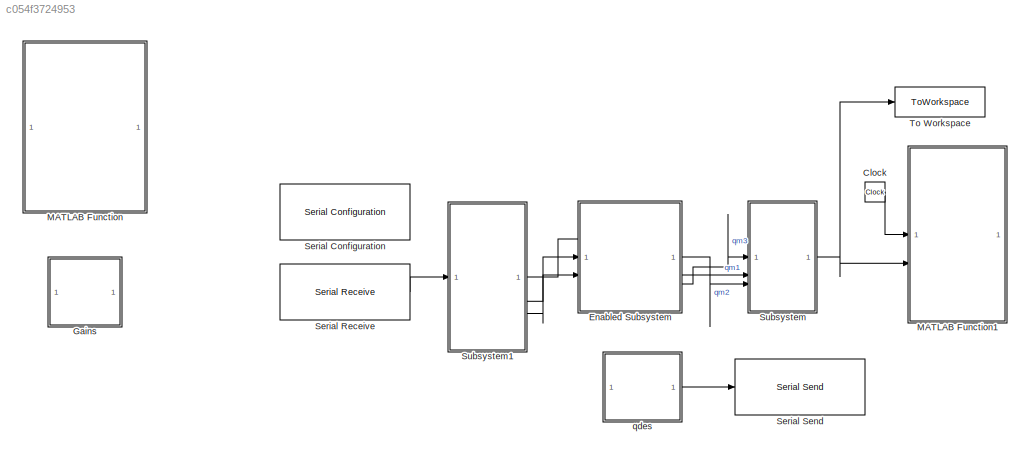
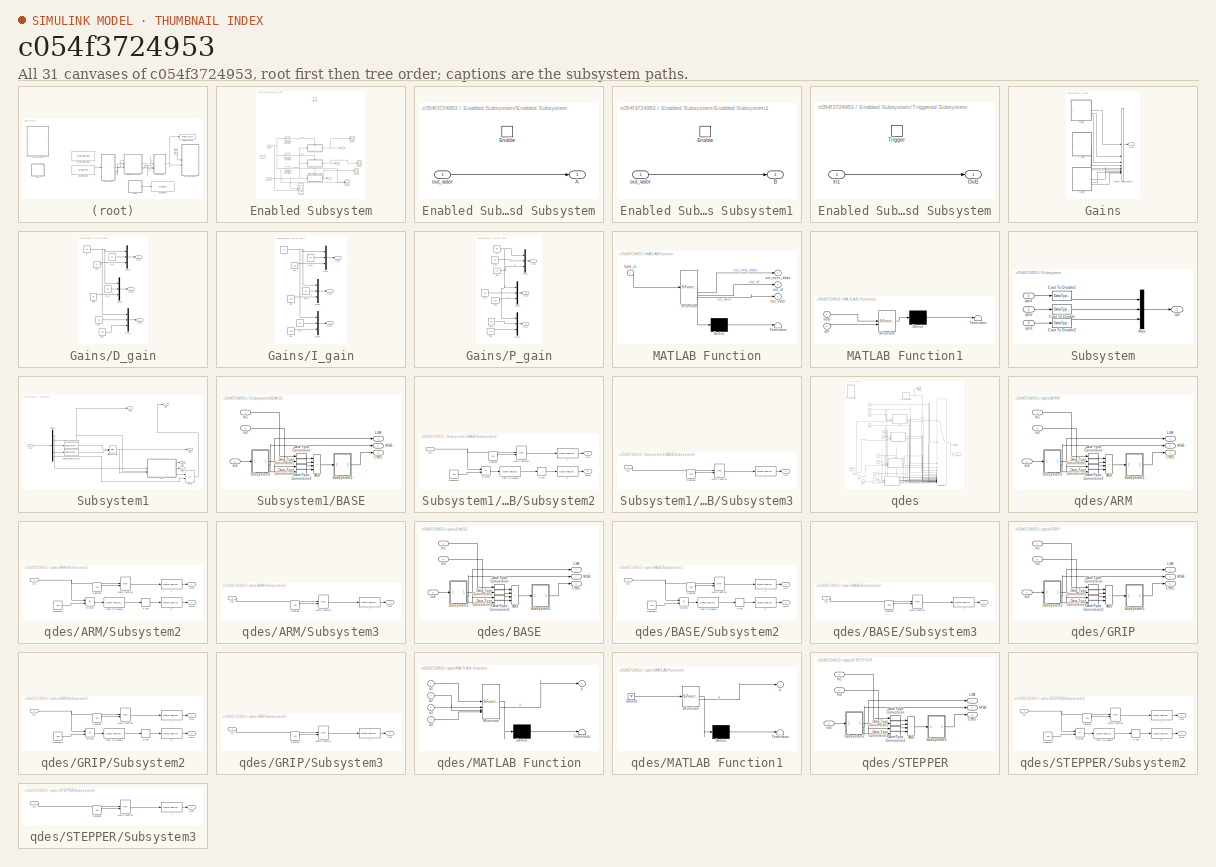
[diagram: thumbnail index - all 31 canvases of the model, root first then tree order]
MODEL slx_c054f3724953
KIND model
CONFIG AbsTol = auto
CONFIG EnableMultiTasking = off
CONFIG FixedStep = auto
CONFIG MaxStep = auto
CONFIG MinStep = auto
CONFIG RelTol = 1e-3
CONFIG SampleTimeConstraint = Unconstrained
CONFIG SolverName = VariableStepAuto
CONFIG StartTime = 0.0
CONFIG StopFcn = try\n    delete(instrfindall);\n    fclose(instrfindall);\ncatch\nend\n
CONFIG StopTime = inf
BLOCK [Clock] Clock
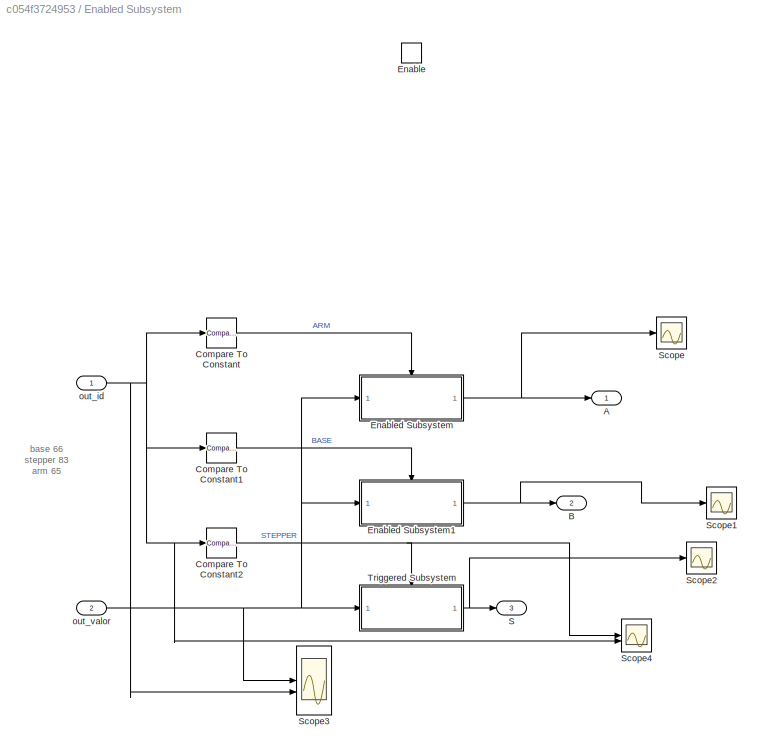
BLOCK [SubSystem] Enabled Subsystem
  TreatAsAtomicUnit = on
BLOCK [Outport] Enabled Subsystem/A
BLOCK [Outport] Enabled Subsystem/B
  Port = 2
BLOCK [Reference] Enabled Subsystem/Compare To Constant  REF=simulink/Logic and Bit
Operations/Compare
To Constant
  SourceBlock = simulink/Logic and Bit\nOperations/Compare\nTo Constant
  SourceType = Compare To Constant
BLOCK [Reference] Enabled Subsystem/Compare To Constant1  REF=simulink/Logic and Bit
Operations/Compare
To Constant
  SourceBlock = simulink/Logic and Bit\nOperations/Compare\nTo Constant
  SourceType = Compare To Constant
BLOCK [Reference] Enabled Subsystem/Compare To Constant2  REF=simulink/Logic and Bit
Operations/Compare
To Constant
  SourceBlock = simulink/Logic and Bit\nOperations/Compare\nTo Constant
  SourceType = Compare To Constant
BLOCK [EnablePort] Enabled Subsystem/Enable
BLOCK [SubSystem] Enabled Subsystem/Enabled Subsystem
  TreatAsAtomicUnit = on
BLOCK [Outport] Enabled Subsystem/Enabled Subsystem/A
BLOCK [EnablePort] Enabled Subsystem/Enabled Subsystem/Enable
BLOCK [Inport] Enabled Subsystem/Enabled Subsystem/out_valor
BLOCK [SubSystem] Enabled Subsystem/Enabled Subsystem1
  TreatAsAtomicUnit = on
BLOCK [Outport] Enabled Subsystem/Enabled Subsystem1/B
BLOCK [EnablePort] Enabled Subsystem/Enabled Subsystem1/Enable
BLOCK [Inport] Enabled Subsystem/Enabled Subsystem1/out_valor
BLOCK [Outport] Enabled Subsystem/S
  Port = 3
BLOCK [Scope] Enabled Subsystem/Scope
  Floating = off
  NumInputPorts = 1
  ScopeSpecificationString = Simulink.scopes.TimeScopeBlockCfg('CurrentConfiguration', extmgr.ConfigurationSet(extmgr.Configuration('Core','General UI',true),extmgr.Configuration('Core','Source UI',true),extmgr.Configuration('Sources','WiredSimulink',true,'DataLoggingVariableName','ScopeData3'),extmgr.Configuration('Visuals','Time Domain',true,'SerializedDisplays',{struct('MinYLimReal','-0.10349','MaxYLimReal','0.20922','YLab...<+1511ch>
BLOCK [Scope] Enabled Subsystem/Scope1
  Floating = off
  NumInputPorts = 1
  ScopeSpecificationString = Simulink.scopes.TimeScopeBlockCfg('CurrentConfiguration', extmgr.ConfigurationSet(extmgr.Configuration('Core','General UI',true),extmgr.Configuration('Core','Source UI',true),extmgr.Configuration('Sources','WiredSimulink',true,'DataLoggingVariableName','ScopeData4'),extmgr.Configuration('Visuals','Time Domain',true,'SerializedDisplays',{struct('MinYLimReal','-0.25','MaxYLimReal','2.25','YLabelReal...<+1519ch>
BLOCK [Scope] Enabled Subsystem/Scope2
  Floating = off
  NumInputPorts = 1
  ScopeSpecificationString = Simulink.scopes.TimeScopeBlockCfg('CurrentConfiguration', extmgr.ConfigurationSet(extmgr.Configuration('Core','General UI',true),extmgr.Configuration('Core','Source UI',true),extmgr.Configuration('Sources','WiredSimulink',true,'DataLoggingVariableName','ScopeData5'),extmgr.Configuration('Visuals','Time Domain',true,'SerializedDisplays',{struct('MinYLimReal','-14.375','MaxYLimReal','129.375','YLabe...<+1536ch>
BLOCK [Scope] Enabled Subsystem/Scope3
  Floating = off
  NumInputPorts = 2
  ScopeSpecificationString = Simulink.scopes.TimeScopeBlockCfg('CurrentConfiguration', extmgr.ConfigurationSet(extmgr.Configuration('Core','General UI',true),extmgr.Configuration('Core','Source UI',true),extmgr.Configuration('Sources','WiredSimulink',true,'DataLoggingVariableName','ScopeData6'),extmgr.Configuration('Visuals','Time Domain',true,'SerializedDisplays',{struct('MinYLimReal','-14.375','MaxYLimReal','129.375','YLabe...<+2259ch>
BLOCK [Scope] Enabled Subsystem/Scope4
  Floating = off
  NumInputPorts = 2
  ScopeSpecificationString = Simulink.scopes.TimeScopeBlockCfg('CurrentConfiguration', extmgr.ConfigurationSet(extmgr.Configuration('Core','General UI',true),extmgr.Configuration('Core','Source UI',true),extmgr.Configuration('Sources','WiredSimulink',true,'DataLoggingVariableName','ScopeData7'),extmgr.Configuration('Visuals','Time Domain',true,'SerializedDisplays',{struct('MinYLimReal','-0.125','MaxYLimReal','1.125','YLabelRe...<+2253ch>
BLOCK [SubSystem] Enabled Subsystem/Triggered Subsystem
  TreatAsAtomicUnit = on
BLOCK [Inport] Enabled Subsystem/Triggered Subsystem/In1
BLOCK [Outport] Enabled Subsystem/Triggered Subsystem/Out1
BLOCK [TriggerPort] Enabled Subsystem/Triggered Subsystem/Trigger
  StatesWhenEnabling = held
  VariantControl = (inherit)
BLOCK [Inport] Enabled Subsystem/out_id
BLOCK [Inport] Enabled Subsystem/out_valor
  Port = 2
BLOCK [SubSystem] Gains
  Commented = on
BLOCK [SubSystem] Gains/D_gain
BLOCK [Constant] Gains/D_gain/D
  OutDataTypeStr = uint8
  Value = 68
BLOCK [Constant] Gains/D_gain/J1_B
  OutDataTypeStr = uint8
  Value = 66
BLOCK [Constant] Gains/D_gain/J2_S
  OutDataTypeStr = uint8
  Value = 82
BLOCK [Constant] Gains/D_gain/J3_A
  OutDataTypeStr = uint8
  Value = 65
BLOCK [Constant] Gains/D_gain/Kd1
  OutDataTypeStr = uint8
  Value = 17
BLOCK [Constant] Gains/D_gain/Kd2
  OutDataTypeStr = uint8
  Value = 90
BLOCK [Constant] Gains/D_gain/Kd3
  OutDataTypeStr = uint8
  Value = 109
BLOCK [Mux] Gains/D_gain/Mux1
  DisplayOption = bar
  Inputs = 3
BLOCK [Mux] Gains/D_gain/Mux2
  DisplayOption = bar
  Inputs = 3
BLOCK [Mux] Gains/D_gain/Mux3
  DisplayOption = bar
  Inputs = 3
BLOCK [Outport] Gains/D_gain/Out1
BLOCK [Outport] Gains/D_gain/Out2
  Port = 2
BLOCK [Outport] Gains/D_gain/Out3
  Port = 3
BLOCK [SubSystem] Gains/I_gain
BLOCK [Constant] Gains/I_gain/I
  OutDataTypeStr = uint8
  Value = 73
BLOCK [Constant] Gains/I_gain/J1_B
  OutDataTypeStr = uint8
  Value = 66
BLOCK [Constant] Gains/I_gain/J2_S
  OutDataTypeStr = uint8
  Value = 82
BLOCK [Constant] Gains/I_gain/J3_A
  OutDataTypeStr = uint8
  Value = 65
BLOCK [Constant] Gains/I_gain/Ki1
  OutDataTypeStr = uint8
  Value = 230
BLOCK [Constant] Gains/I_gain/Ki2
  OutDataTypeStr = uint8
  Value = 200
BLOCK [Constant] Gains/I_gain/Ki3
  OutDataTypeStr = uint8
  Value = 220
BLOCK [Mux] Gains/I_gain/Mux1
  DisplayOption = bar
  Inputs = 3
BLOCK [Mux] Gains/I_gain/Mux2
  DisplayOption = bar
  Inputs = 3
BLOCK [Mux] Gains/I_gain/Mux3
  DisplayOption = bar
  Inputs = 3
BLOCK [Outport] Gains/I_gain/Out1
BLOCK [Outport] Gains/I_gain/Out2
  Port = 2
BLOCK [Outport] Gains/I_gain/Out3
  Port = 3
BLOCK [Outport] Gains/Out1
BLOCK [SubSystem] Gains/P_gain
BLOCK [Constant] Gains/P_gain/J1_B
  OutDataTypeStr = uint8
  Value = 66
BLOCK [Constant] Gains/P_gain/J2_S
  OutDataTypeStr = uint8
  Value = 82
BLOCK [Constant] Gains/P_gain/J3_A
  OutDataTypeStr = uint8
  Value = 65
BLOCK [Constant] Gains/P_gain/Kp1
  OutDataTypeStr = uint8
  Value = 147
BLOCK [Constant] Gains/P_gain/Kp2
  OutDataTypeStr = uint8
  Value = 220
BLOCK [Constant] Gains/P_gain/Kp3
  OutDataTypeStr = uint8
  Value = 194
BLOCK [Mux] Gains/P_gain/Mux1
  DisplayOption = bar
  Inputs = 3
BLOCK [Mux] Gains/P_gain/Mux2
  DisplayOption = bar
  Inputs = 3
BLOCK [Mux] Gains/P_gain/Mux3
  DisplayOption = bar
  Inputs = 3
BLOCK [Outport] Gains/P_gain/Out1
BLOCK [Outport] Gains/P_gain/Out2
  Port = 2
BLOCK [Outport] Gains/P_gain/Out3
  Port = 3
BLOCK [Constant] Gains/P_gain/P
  OutDataTypeStr = uint8
  Value = 80
BLOCK [Concatenate] Gains/Vector Concatenate
  NumInputs = 9
BLOCK [SubSystem] MATLAB Function
  Commented = on
  ErrorFcn = Stateflow.Translate.translate
  PermitHierarchicalResolution = ExplicitOnly
  SFBlockType = MATLAB Function
  TreatAsAtomicUnit = on
BLOCK [Demux] MATLAB Function/ Demux 
  Outputs = 1
BLOCK [S-Function] MATLAB Function/ SFunction 
  EnableBusSupport = on
  FunctionName = sf_sfun
  PortCounts = [1 4]
  SFcnIsStateOwnerBlock = off
  SFunctionDeploymentMode = off
  Tag = Stateflow S-Function 2
BLOCK [Terminator] MATLAB Function/ Terminator 
BLOCK [Inport] MATLAB Function/byte_in
BLOCK [Outport] MATLAB Function/out_id
  Port = 2
BLOCK [Outport] MATLAB Function/out_novo_dado
BLOCK [Outport] MATLAB Function/out_valor
  Port = 3
BLOCK [SubSystem] MATLAB Function1
  ErrorFcn = Stateflow.Translate.translate
  PermitHierarchicalResolution = ExplicitOnly
  SFBlockType = MATLAB Function
  TreatAsAtomicUnit = on
BLOCK [Demux] MATLAB Function1/ Demux 
  Outputs = 1
BLOCK [S-Function] MATLAB Function1/ SFunction 
  EnableBusSupport = on
  FunctionName = sf_sfun
  PortCounts = [2 1]
  SFcnIsStateOwnerBlock = off
  SFunctionDeploymentMode = off
  Tag = Stateflow S-Function 1
BLOCK [Terminator] MATLAB Function1/ Terminator 
BLOCK [Inport] MATLAB Function1/qm
  Port = 2
BLOCK [Inport] MATLAB Function1/treal
BLOCK [Reference] Serial Configuration  REF=instrumentseriallib/Serial Configuration
  LibrarySourceBlock = instrumentlib/Serial Configuration
  Priority = -200000
  SourceBlock = instrumentseriallib/Serial Configuration
  SourceType = system.SerialConfiguration
BLOCK [Reference] Serial Receive  REF=instrumentseriallib/Serial Receive
  LibrarySourceBlock = instrumentlib/Serial Receive
  Priority = 1
  SourceBlock = instrumentseriallib/Serial Receive
  SourceType = system.SerialReceive
BLOCK [Reference] Serial Send  REF=instrumentseriallib/Serial Send
  LibrarySourceBlock = instrumentlib/Serial Send
  Priority = 1
  SourceBlock = instrumentseriallib/Serial Send
  SourceType = system.SerialSend
BLOCK [SubSystem] Subsystem
BLOCK [DataTypeConversion] Subsystem/Cast To Double
  OutDataTypeStr = double
  RndMeth = Floor
  SaturateOnIntegerOverflow = off
BLOCK [DataTypeConversion] Subsystem/Cast To Double1
  OutDataTypeStr = double
  RndMeth = Floor
  SaturateOnIntegerOverflow = off
BLOCK [DataTypeConversion] Subsystem/Cast To Double2
  OutDataTypeStr = double
  RndMeth = Floor
  SaturateOnIntegerOverflow = off
BLOCK [Mux] Subsystem/Mux
  DisplayOption = bar
  Inputs = 3
BLOCK [Outport] Subsystem/qm
BLOCK [Inport] Subsystem/qm1
  Port = 2
BLOCK [Inport] Subsystem/qm2
BLOCK [Inport] Subsystem/qm3
  Port = 3
BLOCK [SubSystem] Subsystem1
BLOCK [SubSystem] Subsystem1/BASE
BLOCK [Sum] Subsystem1/BASE/Add
  AccumDataTypeStr = uint16
  IconShape = rectangular
  Inputs = ++++
BLOCK [DataTypeConversion] Subsystem1/BASE/Data Type Conversion
  OutDataTypeStr = uint16
  RndMeth = Floor
  SaturateOnIntegerOverflow = off
BLOCK [DataTypeConversion] Subsystem1/BASE/Data Type Conversion1
  OutDataTypeStr = uint16
  RndMeth = Floor
  SaturateOnIntegerOverflow = off
BLOCK [DataTypeConversion] Subsystem1/BASE/Data Type Conversion2
  OutDataTypeStr = uint16
  RndMeth = Floor
  SaturateOnIntegerOverflow = off
BLOCK [DataTypeConversion] Subsystem1/BASE/Data Type Conversion3
  OutDataTypeStr = uint16
  RndMeth = Floor
  SaturateOnIntegerOverflow = off
BLOCK [Inport] Subsystem1/BASE/In1
BLOCK [Inport] Subsystem1/BASE/In2
  Port = 2
BLOCK [Inport] Subsystem1/BASE/In3
  Port = 3
BLOCK [Outport] Subsystem1/BASE/LSB
BLOCK [Outport] Subsystem1/BASE/LSB1
  Port = 3
BLOCK [Outport] Subsystem1/BASE/MSB
  Port = 2
BLOCK [SubSystem] Subsystem1/BASE/Subsystem2
BLOCK [DataTypeConversion] Subsystem1/BASE/Subsystem2/A
  OutDataTypeStr = uint8
  RndMeth = Floor
  SaturateOnIntegerOverflow = off
BLOCK [DataTypeConversion] Subsystem1/BASE/Subsystem2/Cast To Double
  OutDataTypeStr = double
  RndMeth = Floor
  SaturateOnIntegerOverflow = off
BLOCK [Constant] Subsystem1/BASE/Subsystem2/Constant
  OutDataTypeStr = uint16
  Value = 256
BLOCK [Constant] Subsystem1/BASE/Subsystem2/Constant1
  OutDataTypeStr = uint16
  Value = 256
BLOCK [Product] Subsystem1/BASE/Subsystem2/Divide
  Inputs = */
BLOCK [Rounding] Subsystem1/BASE/Subsystem2/Floor
BLOCK [Inport] Subsystem1/BASE/Subsystem2/In1
BLOCK [Outport] Subsystem1/BASE/Subsystem2/LSB
BLOCK [Outport] Subsystem1/BASE/Subsystem2/MSB
  Port = 2
BLOCK [Math] Subsystem1/BASE/Subsystem2/Math Function
  Operator = mod
BLOCK [DataTypeConversion] Subsystem1/BASE/Subsystem2/S
  OutDataTypeStr = uint8
  RndMeth = Floor
  SaturateOnIntegerOverflow = off
BLOCK [SubSystem] Subsystem1/BASE/Subsystem3
BLOCK [DataTypeConversion] Subsystem1/BASE/Subsystem3/A
  OutDataTypeStr = uint8
  RndMeth = Floor
  SaturateOnIntegerOverflow = off
BLOCK [Constant] Subsystem1/BASE/Subsystem3/Constant
  OutDataTypeStr = uint16
  Value = 256
BLOCK [Inport] Subsystem1/BASE/Subsystem3/In1
BLOCK [Outport] Subsystem1/BASE/Subsystem3/LSB
BLOCK [Math] Subsystem1/BASE/Subsystem3/Math Function
  Operator = mod
BLOCK [Reference] Subsystem1/Bitwise Operator  REF=simulink/Logic and Bit
Operations/Bitwise
Operator
  SourceBlock = simulink/Logic and Bit\nOperations/Bitwise\nOperator
  SourceType = Bitwise Operator
BLOCK [DataTypeConversion] Subsystem1/Data Type Conversion
  OutDataTypeStr = uint16
  RndMeth = Floor
  SaturateOnIntegerOverflow = off
BLOCK [DataTypeConversion] Subsystem1/Data Type Conversion1
  OutDataTypeStr = uint16
  RndMeth = Floor
  SaturateOnIntegerOverflow = off
BLOCK [Demux] Subsystem1/Demux
  Outputs = 5
BLOCK [RelationalOperator] Subsystem1/Equal
  InputSameDT = off
  Operator = ==
  OutDataTypeStr = boolean
  RndMeth = Simplest
BLOCK [Inport] Subsystem1/In1
BLOCK [Outport] Subsystem1/LSB
  Port = 4
BLOCK [Outport] Subsystem1/MSB
  Port = 5
BLOCK [Outport] Subsystem1/Out1
BLOCK [Outport] Subsystem1/Out2
  Port = 2
BLOCK [Outport] Subsystem1/Out3
  Port = 3
BLOCK [ToWorkspace] To Workspace
  FixptAsFi = on
  MaxDataPoints = inf
  SampleTime = -1
  SaveFormat = Timeseries
  VariableName = simout
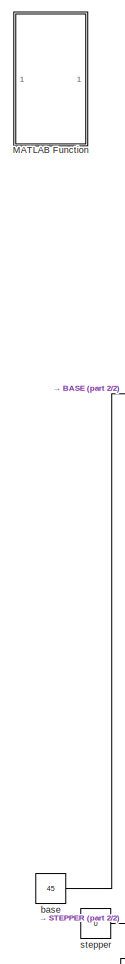
[diagram: qdes - part 1/2, left side, full height]
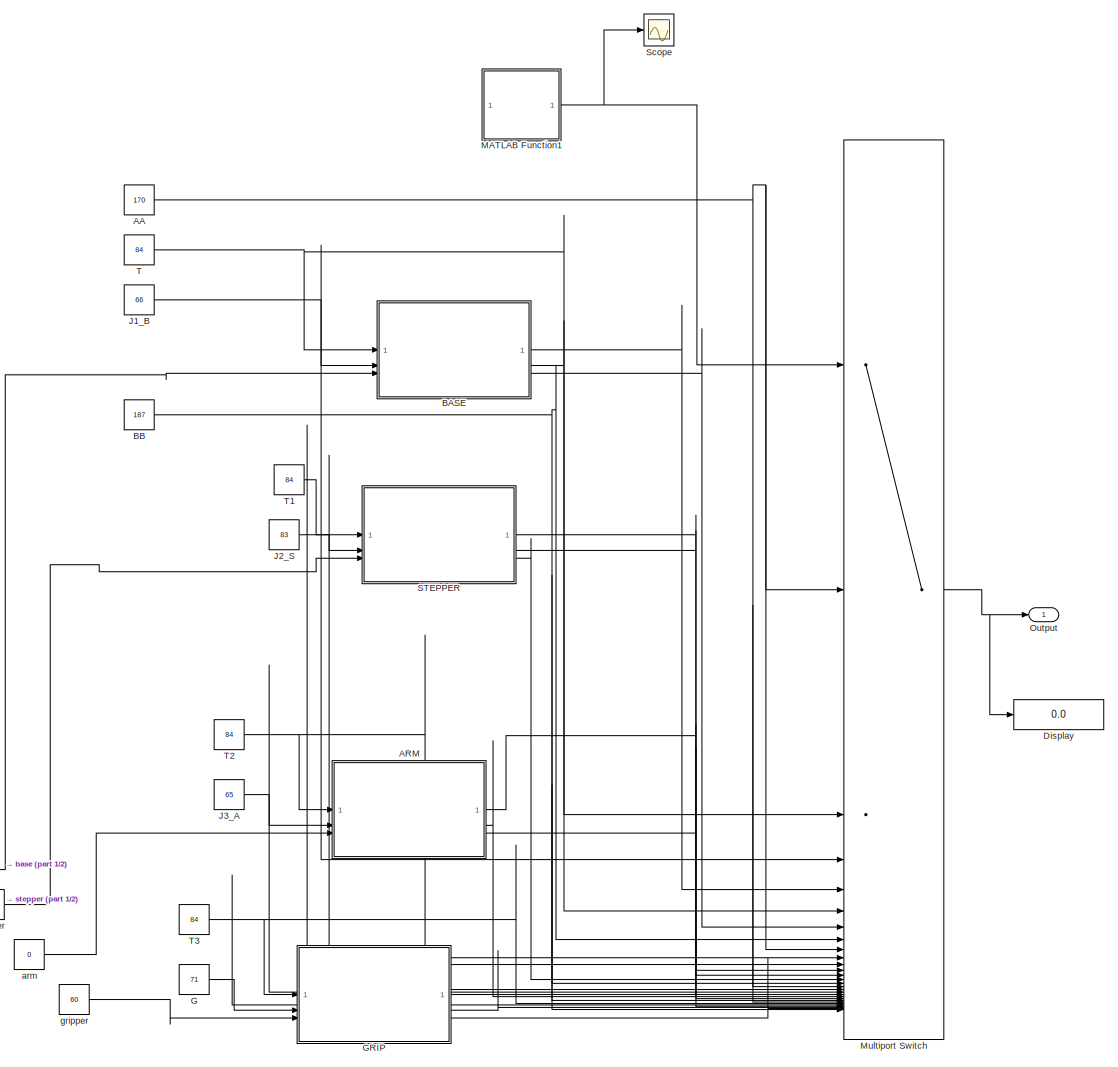
[diagram: qdes - part 2/2, most of the canvas]
BLOCK [SubSystem] qdes
BLOCK [Constant] qdes/AA
  OutDataTypeStr = uint8
  Value = 170
BLOCK [SubSystem] qdes/ARM
BLOCK [Sum] qdes/ARM/Add
  AccumDataTypeStr = uint16
  IconShape = rectangular
  Inputs = ++++
BLOCK [DataTypeConversion] qdes/ARM/Data Type Conversion
  OutDataTypeStr = uint16
  RndMeth = Floor
  SaturateOnIntegerOverflow = off
BLOCK [DataTypeConversion] qdes/ARM/Data Type Conversion1
  OutDataTypeStr = uint16
  RndMeth = Floor
  SaturateOnIntegerOverflow = off
BLOCK [DataTypeConversion] qdes/ARM/Data Type Conversion2
  OutDataTypeStr = uint16
  RndMeth = Floor
  SaturateOnIntegerOverflow = off
BLOCK [DataTypeConversion] qdes/ARM/Data Type Conversion3
  OutDataTypeStr = uint16
  RndMeth = Floor
  SaturateOnIntegerOverflow = off
BLOCK [Inport] qdes/ARM/In1
BLOCK [Inport] qdes/ARM/In2
  Port = 2
BLOCK [Inport] qdes/ARM/In3
  Port = 3
BLOCK [Outport] qdes/ARM/LSB
BLOCK [Outport] qdes/ARM/LSB1
  Port = 3
BLOCK [Outport] qdes/ARM/MSB
  Port = 2
BLOCK [SubSystem] qdes/ARM/Subsystem2
BLOCK [DataTypeConversion] qdes/ARM/Subsystem2/A
  OutDataTypeStr = uint8
  RndMeth = Floor
  SaturateOnIntegerOverflow = off
BLOCK [DataTypeConversion] qdes/ARM/Subsystem2/Cast To Double
  OutDataTypeStr = double
  RndMeth = Floor
  SaturateOnIntegerOverflow = off
BLOCK [Constant] qdes/ARM/Subsystem2/Constant
  OutDataTypeStr = uint16
  Value = 256
BLOCK [Constant] qdes/ARM/Subsystem2/Constant1
  OutDataTypeStr = uint16
  Value = 256
BLOCK [Product] qdes/ARM/Subsystem2/Divide
  Inputs = */
BLOCK [Rounding] qdes/ARM/Subsystem2/Floor
BLOCK [Inport] qdes/ARM/Subsystem2/In1
BLOCK [Outport] qdes/ARM/Subsystem2/LSB
BLOCK [Outport] qdes/ARM/Subsystem2/MSB
  Port = 2
BLOCK [Math] qdes/ARM/Subsystem2/Math Function
  Operator = mod
BLOCK [DataTypeConversion] qdes/ARM/Subsystem2/S
  OutDataTypeStr = uint8
  RndMeth = Floor
  SaturateOnIntegerOverflow = off
BLOCK [SubSystem] qdes/ARM/Subsystem3
BLOCK [DataTypeConversion] qdes/ARM/Subsystem3/A
  OutDataTypeStr = uint8
  RndMeth = Floor
  SaturateOnIntegerOverflow = off
BLOCK [Constant] qdes/ARM/Subsystem3/Constant
  OutDataTypeStr = uint16
  Value = 256
BLOCK [Inport] qdes/ARM/Subsystem3/In1
BLOCK [Outport] qdes/ARM/Subsystem3/LSB
BLOCK [Math] qdes/ARM/Subsystem3/Math Function
  Operator = mod
BLOCK [SubSystem] qdes/BASE
BLOCK [Sum] qdes/BASE/Add
  AccumDataTypeStr = uint16
  IconShape = rectangular
  Inputs = ++++
BLOCK [DataTypeConversion] qdes/BASE/Data Type Conversion
  OutDataTypeStr = uint16
  RndMeth = Floor
  SaturateOnIntegerOverflow = off
BLOCK [DataTypeConversion] qdes/BASE/Data Type Conversion1
  OutDataTypeStr = uint16
  RndMeth = Floor
  SaturateOnIntegerOverflow = off
BLOCK [DataTypeConversion] qdes/BASE/Data Type Conversion2
  OutDataTypeStr = uint16
  RndMeth = Floor
  SaturateOnIntegerOverflow = off
BLOCK [DataTypeConversion] qdes/BASE/Data Type Conversion3
  OutDataTypeStr = uint16
  RndMeth = Floor
  SaturateOnIntegerOverflow = off
BLOCK [Inport] qdes/BASE/In1
BLOCK [Inport] qdes/BASE/In2
  Port = 2
BLOCK [Inport] qdes/BASE/In3
  Port = 3
BLOCK [Outport] qdes/BASE/LSB
BLOCK [Outport] qdes/BASE/LSB1
  Port = 3
BLOCK [Outport] qdes/BASE/MSB
  Port = 2
BLOCK [SubSystem] qdes/BASE/Subsystem2
BLOCK [DataTypeConversion] qdes/BASE/Subsystem2/A
  OutDataTypeStr = uint8
  RndMeth = Floor
  SaturateOnIntegerOverflow = off
BLOCK [DataTypeConversion] qdes/BASE/Subsystem2/Cast To Double
  OutDataTypeStr = double
  RndMeth = Floor
  SaturateOnIntegerOverflow = off
BLOCK [Constant] qdes/BASE/Subsystem2/Constant
  OutDataTypeStr = uint16
  Value = 256
BLOCK [Constant] qdes/BASE/Subsystem2/Constant1
  OutDataTypeStr = uint16
  Value = 256
BLOCK [Product] qdes/BASE/Subsystem2/Divide
  Inputs = */
BLOCK [Rounding] qdes/BASE/Subsystem2/Floor
BLOCK [Inport] qdes/BASE/Subsystem2/In1
BLOCK [Outport] qdes/BASE/Subsystem2/LSB
BLOCK [Outport] qdes/BASE/Subsystem2/MSB
  Port = 2
BLOCK [Math] qdes/BASE/Subsystem2/Math Function
  Operator = mod
BLOCK [DataTypeConversion] qdes/BASE/Subsystem2/S
  OutDataTypeStr = uint8
  RndMeth = Floor
  SaturateOnIntegerOverflow = off
BLOCK [SubSystem] qdes/BASE/Subsystem3
BLOCK [DataTypeConversion] qdes/BASE/Subsystem3/A
  OutDataTypeStr = uint8
  RndMeth = Floor
  SaturateOnIntegerOverflow = off
BLOCK [Constant] qdes/BASE/Subsystem3/Constant
  OutDataTypeStr = uint16
  Value = 256
BLOCK [Inport] qdes/BASE/Subsystem3/In1
BLOCK [Outport] qdes/BASE/Subsystem3/LSB
BLOCK [Math] qdes/BASE/Subsystem3/Math Function
  Operator = mod
BLOCK [Constant] qdes/BB
  OutDataTypeStr = uint8
  Value = 187
BLOCK [Display] qdes/Display
  Decimation = 1
BLOCK [Constant] qdes/G
  OutDataTypeStr = uint8
  Value = 71
BLOCK [SubSystem] qdes/GRIP
BLOCK [Sum] qdes/GRIP/Add
  AccumDataTypeStr = uint16
  IconShape = rectangular
  Inputs = ++++
BLOCK [DataTypeConversion] qdes/GRIP/Data Type Conversion
  OutDataTypeStr = uint16
  RndMeth = Floor
  SaturateOnIntegerOverflow = off
BLOCK [DataTypeConversion] qdes/GRIP/Data Type Conversion1
  OutDataTypeStr = uint16
  RndMeth = Floor
  SaturateOnIntegerOverflow = off
BLOCK [DataTypeConversion] qdes/GRIP/Data Type Conversion2
  OutDataTypeStr = uint16
  RndMeth = Floor
  SaturateOnIntegerOverflow = off
BLOCK [DataTypeConversion] qdes/GRIP/Data Type Conversion3
  OutDataTypeStr = uint16
  RndMeth = Floor
  SaturateOnIntegerOverflow = off
BLOCK [Inport] qdes/GRIP/In1
BLOCK [Inport] qdes/GRIP/In2
  Port = 2
BLOCK [Inport] qdes/GRIP/In3
  Port = 3
BLOCK [Outport] qdes/GRIP/LSB
BLOCK [Outport] qdes/GRIP/LSB1
  Port = 3
BLOCK [Outport] qdes/GRIP/MSB
  Port = 2
BLOCK [SubSystem] qdes/GRIP/Subsystem2
BLOCK [DataTypeConversion] qdes/GRIP/Subsystem2/A
  OutDataTypeStr = uint8
  RndMeth = Floor
  SaturateOnIntegerOverflow = off
BLOCK [DataTypeConversion] qdes/GRIP/Subsystem2/Cast To Double
  OutDataTypeStr = double
  RndMeth = Floor
  SaturateOnIntegerOverflow = off
BLOCK [Constant] qdes/GRIP/Subsystem2/Constant
  OutDataTypeStr = uint16
  Value = 256
BLOCK [Constant] qdes/GRIP/Subsystem2/Constant1
  OutDataTypeStr = uint16
  Value = 256
BLOCK [Product] qdes/GRIP/Subsystem2/Divide
  Inputs = */
BLOCK [Rounding] qdes/GRIP/Subsystem2/Floor
BLOCK [Inport] qdes/GRIP/Subsystem2/In1
BLOCK [Outport] qdes/GRIP/Subsystem2/LSB
BLOCK [Outport] qdes/GRIP/Subsystem2/MSB
  Port = 2
BLOCK [Math] qdes/GRIP/Subsystem2/Math Function
  Operator = mod
BLOCK [DataTypeConversion] qdes/GRIP/Subsystem2/S
  OutDataTypeStr = uint8
  RndMeth = Floor
  SaturateOnIntegerOverflow = off
BLOCK [SubSystem] qdes/GRIP/Subsystem3
BLOCK [DataTypeConversion] qdes/GRIP/Subsystem3/A
  OutDataTypeStr = uint8
  RndMeth = Floor
  SaturateOnIntegerOverflow = off
BLOCK [Constant] qdes/GRIP/Subsystem3/Constant
  OutDataTypeStr = uint16
  Value = 256
BLOCK [Inport] qdes/GRIP/Subsystem3/In1
BLOCK [Outport] qdes/GRIP/Subsystem3/LSB
BLOCK [Math] qdes/GRIP/Subsystem3/Math Function
  Operator = mod
BLOCK [Constant] qdes/J1_B
  OutDataTypeStr = uint8
  Value = 66
BLOCK [Constant] qdes/J2_S
  OutDataTypeStr = uint8
  Value = 83
BLOCK [Constant] qdes/J3_A
  OutDataTypeStr = uint8
  Value = 65
BLOCK [SubSystem] qdes/MATLAB Function
  Commented = on
  ErrorFcn = Stateflow.Translate.translate
  PermitHierarchicalResolution = ExplicitOnly
  SFBlockType = MATLAB Function
  TreatAsAtomicUnit = on
BLOCK [Demux] qdes/MATLAB Function/ Demux 
  Outputs = 1
BLOCK [S-Function] qdes/MATLAB Function/ SFunction 
  EnableBusSupport = on
  FunctionName = sf_sfun
  PortCounts = [4 2]
  SFcnIsStateOwnerBlock = off
  SFunctionDeploymentMode = off
  Tag = Stateflow S-Function 3
BLOCK [Terminator] qdes/MATLAB Function/ Terminator 
BLOCK [Inport] qdes/MATLAB Function/q1
BLOCK [Inport] qdes/MATLAB Function/q2
  Port = 2
BLOCK [Inport] qdes/MATLAB Function/q3
  Port = 3
BLOCK [Inport] qdes/MATLAB Function/q4
  Port = 4
BLOCK [Outport] qdes/MATLAB Function/y
BLOCK [SubSystem] qdes/MATLAB Function1
  ErrorFcn = Stateflow.Translate.translate
  PermitHierarchicalResolution = ExplicitOnly
  SFBlockType = MATLAB Function
  SystemSampleTime = .0005
  TreatAsAtomicUnit = on
BLOCK [Demux] qdes/MATLAB Function1/ Demux 
  Outputs = 1
BLOCK [Ground] qdes/MATLAB Function1/ Ground 
BLOCK [S-Function] qdes/MATLAB Function1/ SFunction 
  EnableBusSupport = on
  FunctionName = sf_sfun
  PortCounts = [1 2]
  SFcnIsStateOwnerBlock = off
  SFunctionDeploymentMode = off
  Tag = Stateflow S-Function 4
BLOCK [Terminator] qdes/MATLAB Function1/ Terminator 
BLOCK [Outport] qdes/MATLAB Function1/y
BLOCK [MultiPortSwitch] qdes/Multiport Switch
  DataPortForDefault = Additional data port
  DataPortOrder = Zero-based contiguous
  InputSameDT = off
  Inputs = 28
  SaturateOnIntegerOverflow = off
  zeroidx = on
BLOCK [Outport] qdes/Output
BLOCK [SubSystem] qdes/STEPPER
BLOCK [Sum] qdes/STEPPER/Add
  AccumDataTypeStr = uint16
  IconShape = rectangular
  Inputs = ++++
BLOCK [DataTypeConversion] qdes/STEPPER/Data Type Conversion
  OutDataTypeStr = uint16
  RndMeth = Floor
  SaturateOnIntegerOverflow = off
BLOCK [DataTypeConversion] qdes/STEPPER/Data Type Conversion1
  OutDataTypeStr = uint16
  RndMeth = Floor
  SaturateOnIntegerOverflow = off
BLOCK [DataTypeConversion] qdes/STEPPER/Data Type Conversion2
  OutDataTypeStr = uint16
  RndMeth = Floor
  SaturateOnIntegerOverflow = off
BLOCK [DataTypeConversion] qdes/STEPPER/Data Type Conversion3
  OutDataTypeStr = uint16
  RndMeth = Floor
  SaturateOnIntegerOverflow = off
BLOCK [Inport] qdes/STEPPER/In1
BLOCK [Inport] qdes/STEPPER/In2
  Port = 2
BLOCK [Inport] qdes/STEPPER/In3
  Port = 3
BLOCK [Outport] qdes/STEPPER/LSB
BLOCK [Outport] qdes/STEPPER/LSB1
  Port = 3
BLOCK [Outport] qdes/STEPPER/MSB
  Port = 2
BLOCK [SubSystem] qdes/STEPPER/Subsystem2
BLOCK [DataTypeConversion] qdes/STEPPER/Subsystem2/A
  OutDataTypeStr = uint8
  RndMeth = Floor
  SaturateOnIntegerOverflow = off
BLOCK [DataTypeConversion] qdes/STEPPER/Subsystem2/Cast To Double
  OutDataTypeStr = double
  RndMeth = Floor
  SaturateOnIntegerOverflow = off
BLOCK [Constant] qdes/STEPPER/Subsystem2/Constant
  OutDataTypeStr = uint16
  Value = 256
BLOCK [Constant] qdes/STEPPER/Subsystem2/Constant1
  OutDataTypeStr = uint16
  Value = 256
BLOCK [Product] qdes/STEPPER/Subsystem2/Divide
  Inputs = */
BLOCK [Rounding] qdes/STEPPER/Subsystem2/Floor
BLOCK [Inport] qdes/STEPPER/Subsystem2/In1
BLOCK [Outport] qdes/STEPPER/Subsystem2/LSB
BLOCK [Outport] qdes/STEPPER/Subsystem2/MSB
  Port = 2
BLOCK [Math] qdes/STEPPER/Subsystem2/Math Function
  Operator = mod
BLOCK [DataTypeConversion] qdes/STEPPER/Subsystem2/S
  OutDataTypeStr = uint8
  RndMeth = Floor
  SaturateOnIntegerOverflow = off
BLOCK [SubSystem] qdes/STEPPER/Subsystem3
BLOCK [DataTypeConversion] qdes/STEPPER/Subsystem3/A
  OutDataTypeStr = uint8
  RndMeth = Floor
  SaturateOnIntegerOverflow = off
BLOCK [Constant] qdes/STEPPER/Subsystem3/Constant
  OutDataTypeStr = uint16
  Value = 256
BLOCK [Inport] qdes/STEPPER/Subsystem3/In1
BLOCK [Outport] qdes/STEPPER/Subsystem3/LSB
BLOCK [Math] qdes/STEPPER/Subsystem3/Math Function
  Operator = mod
BLOCK [Scope] qdes/Scope
  Floating = off
  NumInputPorts = 1
  ScopeSpecificationString = Simulink.scopes.TimeScopeBlockCfg('CurrentConfiguration', extmgr.ConfigurationSet(extmgr.Configuration('Core','General UI',true),extmgr.Configuration('Core','Source UI',true),extmgr.Configuration('Sources','WiredSimulink',true),extmgr.Configuration('Visuals','Time Domain',true,'SerializedDisplays',{struct('MinYLimReal','-0.18118','MaxYLimReal','6.29073','YLabelReal','','MinYLimMag','0.00000','MaxY...<+1496ch>
BLOCK [Constant] qdes/T
  OutDataTypeStr = uint8
  Value = 84
BLOCK [Constant] qdes/T1
  OutDataTypeStr = uint8
  Value = 84
BLOCK [Constant] qdes/T2
  OutDataTypeStr = uint8
  Value = 84
BLOCK [Constant] qdes/T3
  OutDataTypeStr = uint8
  Value = 84
BLOCK [Constant] qdes/arm
  OutDataTypeStr = uint16
  Value = 0
BLOCK [Constant] qdes/base
  OutDataTypeStr = uint16
  Value = 45
BLOCK [Constant] qdes/gripper
  OutDataTypeStr = uint16
  Value = 60
BLOCK [Constant] qdes/stepper
  OutDataTypeStr = uint16
  Value = 0
ANNOTATION Enabled Subsystem: base 66 stepper 83 arm 65
LINE Clock:1 -> MATLAB Function1:1
LINE Enabled Subsystem/Compare To Constant1:1 -> Enabled Subsystem/Enabled Subsystem1:enable
NET Enabled Subsystem/Compare To Constant2:1 -> Enabled Subsystem/Scope4:1, Enabled Subsystem/Triggered Subsystem:trigger
LINE Enabled Subsystem/Compare To Constant:1 -> Enabled Subsystem/Enabled Subsystem:enable
LINE Enabled Subsystem/Enabled Subsystem/out_valor:1 -> Enabled Subsystem/Enabled Subsystem/A:1
LINE Enabled Subsystem/Enabled Subsystem1/out_valor:1 -> Enabled Subsystem/Enabled Subsystem1/B:1
NET Enabled Subsystem/Enabled Subsystem1:1 -> Enabled Subsystem/B:1, Enabled Subsystem/Scope1:1
NET Enabled Subsystem/Enabled Subsystem:1 -> Enabled Subsystem/A:1, Enabled Subsystem/Scope:1
LINE Enabled Subsystem/Triggered Subsystem/In1:1 -> Enabled Subsystem/Triggered Subsystem/Out1:1
NET Enabled Subsystem/Triggered Subsystem:1 -> Enabled Subsystem/S:1, Enabled Subsystem/Scope2:1
NET Enabled Subsystem/out_id:1 -> Enabled Subsystem/Compare To Constant1:1, Enabled Subsystem/Compare To Constant2:1, Enabled Subsystem/Compare To Constant:1, Enabled Subsystem/Scope3:2, Enabled Subsystem/Scope4:2
NET Enabled Subsystem/out_valor:1 -> Enabled Subsystem/Enabled Subsystem1:1, Enabled Subsystem/Enabled Subsystem:1, Enabled Subsystem/Scope3:1, Enabled Subsystem/Triggered Subsystem:1
LINE Enabled Subsystem:1 -> Subsystem:3
LINE Enabled Subsystem:2 -> Subsystem:2
LINE Enabled Subsystem:3 -> Subsystem:1
NET Gains/D_gain/D:1 -> Gains/D_gain/Mux1:1, Gains/D_gain/Mux2:1, Gains/D_gain/Mux3:1
LINE Gains/D_gain/J1_B:1 -> Gains/D_gain/Mux1:2
LINE Gains/D_gain/J2_S:1 -> Gains/D_gain/Mux2:2
LINE Gains/D_gain/J3_A:1 -> Gains/D_gain/Mux3:2
LINE Gains/D_gain/Kd1:1 -> Gains/D_gain/Mux1:3
LINE Gains/D_gain/Kd2:1 -> Gains/D_gain/Mux2:3
LINE Gains/D_gain/Kd3:1 -> Gains/D_gain/Mux3:3
LINE Gains/D_gain/Mux1:1 -> Gains/D_gain/Out1:1
LINE Gains/D_gain/Mux2:1 -> Gains/D_gain/Out2:1
LINE Gains/D_gain/Mux3:1 -> Gains/D_gain/Out3:1
LINE Gains/D_gain:1 -> Gains/Vector Concatenate:7
LINE Gains/D_gain:2 -> Gains/Vector Concatenate:8
LINE Gains/D_gain:3 -> Gains/Vector Concatenate:9
NET Gains/I_gain/I:1 -> Gains/I_gain/Mux1:1, Gains/I_gain/Mux2:1, Gains/I_gain/Mux3:1
LINE Gains/I_gain/J1_B:1 -> Gains/I_gain/Mux1:2
LINE Gains/I_gain/J2_S:1 -> Gains/I_gain/Mux2:2
LINE Gains/I_gain/J3_A:1 -> Gains/I_gain/Mux3:2
LINE Gains/I_gain/Ki1:1 -> Gains/I_gain/Mux1:3
LINE Gains/I_gain/Ki2:1 -> Gains/I_gain/Mux2:3
LINE Gains/I_gain/Ki3:1 -> Gains/I_gain/Mux3:3
LINE Gains/I_gain/Mux1:1 -> Gains/I_gain/Out1:1
LINE Gains/I_gain/Mux2:1 -> Gains/I_gain/Out2:1
LINE Gains/I_gain/Mux3:1 -> Gains/I_gain/Out3:1
LINE Gains/I_gain:1 -> Gains/Vector Concatenate:4
LINE Gains/I_gain:2 -> Gains/Vector Concatenate:5
LINE Gains/I_gain:3 -> Gains/Vector Concatenate:6
LINE Gains/P_gain/J1_B:1 -> Gains/P_gain/Mux1:2
LINE Gains/P_gain/J2_S:1 -> Gains/P_gain/Mux2:2
LINE Gains/P_gain/J3_A:1 -> Gains/P_gain/Mux3:2
LINE Gains/P_gain/Kp1:1 -> Gains/P_gain/Mux1:3
LINE Gains/P_gain/Kp2:1 -> Gains/P_gain/Mux2:3
LINE Gains/P_gain/Kp3:1 -> Gains/P_gain/Mux3:3
LINE Gains/P_gain/Mux1:1 -> Gains/P_gain/Out1:1
LINE Gains/P_gain/Mux2:1 -> Gains/P_gain/Out2:1
LINE Gains/P_gain/Mux3:1 -> Gains/P_gain/Out3:1
NET Gains/P_gain/P:1 -> Gains/P_gain/Mux1:1, Gains/P_gain/Mux2:1, Gains/P_gain/Mux3:1
LINE Gains/P_gain:1 -> Gains/Vector Concatenate:1
LINE Gains/P_gain:2 -> Gains/Vector Concatenate:2
LINE Gains/P_gain:3 -> Gains/Vector Concatenate:3
LINE Gains/Vector Concatenate:1 -> Gains/Out1:1
LINE Serial Receive:1 -> Subsystem1:1
LINE Subsystem/Cast To Double1:1 -> Subsystem/Mux:1
LINE Subsystem/Cast To Double2:1 -> Subsystem/Mux:3
LINE Subsystem/Cast To Double:1 -> Subsystem/Mux:2
LINE Subsystem/Mux:1 -> Subsystem/qm:1
LINE Subsystem/qm1:1 -> Subsystem/Cast To Double1:1
LINE Subsystem/qm2:1 -> Subsystem/Cast To Double:1
LINE Subsystem/qm3:1 -> Subsystem/Cast To Double2:1
LINE Subsystem1/BASE/Add:1 -> Subsystem1/BASE/Subsystem3:1
LINE Subsystem1/BASE/Data Type Conversion1:1 -> Subsystem1/BASE/Add:2
LINE Subsystem1/BASE/Data Type Conversion2:1 -> Subsystem1/BASE/Add:3
LINE Subsystem1/BASE/Data Type Conversion3:1 -> Subsystem1/BASE/Add:4
LINE Subsystem1/BASE/Data Type Conversion:1 -> Subsystem1/BASE/Add:1
LINE Subsystem1/BASE/In1:1 -> Subsystem1/BASE/Data Type Conversion:1
LINE Subsystem1/BASE/In2:1 -> Subsystem1/BASE/Data Type Conversion1:1
LINE Subsystem1/BASE/In3:1 -> Subsystem1/BASE/Subsystem2:1
LINE Subsystem1/BASE/Subsystem2/A:1 -> Subsystem1/BASE/Subsystem2/LSB:1
LINE Subsystem1/BASE/Subsystem2/Cast To Double:1 -> Subsystem1/BASE/Subsystem2/Floor:1
LINE Subsystem1/BASE/Subsystem2/Constant1:1 -> Subsystem1/BASE/Subsystem2/Divide:2
LINE Subsystem1/BASE/Subsystem2/Constant:1 -> Subsystem1/BASE/Subsystem2/Math Function:2
LINE Subsystem1/BASE/Subsystem2/Divide:1 -> Subsystem1/BASE/Subsystem2/Cast To Double:1
LINE Subsystem1/BASE/Subsystem2/Floor:1 -> Subsystem1/BASE/Subsystem2/S:1
NET Subsystem1/BASE/Subsystem2/In1:1 -> Subsystem1/BASE/Subsystem2/Divide:1, Subsystem1/BASE/Subsystem2/Math Function:1
LINE Subsystem1/BASE/Subsystem2/Math Function:1 -> Subsystem1/BASE/Subsystem2/A:1
LINE Subsystem1/BASE/Subsystem2/S:1 -> Subsystem1/BASE/Subsystem2/MSB:1
NET Subsystem1/BASE/Subsystem2:1 -> Subsystem1/BASE/Data Type Conversion2:1, Subsystem1/BASE/LSB:1
NET Subsystem1/BASE/Subsystem2:2 -> Subsystem1/BASE/Data Type Conversion3:1, Subsystem1/BASE/MSB:1
LINE Subsystem1/BASE/Subsystem3/A:1 -> Subsystem1/BASE/Subsystem3/LSB:1
LINE Subsystem1/BASE/Subsystem3/Constant:1 -> Subsystem1/BASE/Subsystem3/Math Function:2
LINE Subsystem1/BASE/Subsystem3/In1:1 -> Subsystem1/BASE/Subsystem3/Math Function:1
LINE Subsystem1/BASE/Subsystem3/Math Function:1 -> Subsystem1/BASE/Subsystem3/A:1
LINE Subsystem1/BASE/Subsystem3:1 -> Subsystem1/BASE/LSB1:1
LINE Subsystem1/BASE:1 -> Subsystem1/LSB:1
LINE Subsystem1/BASE:2 -> Subsystem1/MSB:1
LINE Subsystem1/BASE:3 -> Subsystem1/Equal:1
NET Subsystem1/Bitwise Operator:1 -> Subsystem1/BASE:3, Subsystem1/Out3:1
LINE Subsystem1/Data Type Conversion1:1 -> Subsystem1/Bitwise Operator:2
LINE Subsystem1/Data Type Conversion:1 -> Subsystem1/Bitwise Operator:1
LINE Subsystem1/Demux:1 -> Subsystem1/BASE:1
NET Subsystem1/Demux:2 -> Subsystem1/BASE:2, Subsystem1/Out2:1
LINE Subsystem1/Demux:3 -> Subsystem1/Data Type Conversion:1
LINE Subsystem1/Demux:4 -> Subsystem1/Data Type Conversion1:1
LINE Subsystem1/Demux:5 -> Subsystem1/Equal:2
LINE Subsystem1/Equal:1 -> Subsystem1/Out1:1
LINE Subsystem1/In1:1 -> Subsystem1/Demux:1
LINE Subsystem1:1 -> Enabled Subsystem:enable
LINE Subsystem1:2 -> Enabled Subsystem:1
LINE Subsystem1:3 -> Enabled Subsystem:2
NET Subsystem:1 -> MATLAB Function1:2, To Workspace:1
NET qdes/AA:1 -> qdes/Multiport Switch:16, qdes/Multiport Switch:2, qdes/Multiport Switch:23, qdes/Multiport Switch:9
LINE qdes/ARM/Add:1 -> qdes/ARM/Subsystem3:1
LINE qdes/ARM/Data Type Conversion1:1 -> qdes/ARM/Add:2
LINE qdes/ARM/Data Type Conversion2:1 -> qdes/ARM/Add:3
LINE qdes/ARM/Data Type Conversion3:1 -> qdes/ARM/Add:4
LINE qdes/ARM/Data Type Conversion:1 -> qdes/ARM/Add:1
LINE qdes/ARM/In1:1 -> qdes/ARM/Data Type Conversion:1
LINE qdes/ARM/In2:1 -> qdes/ARM/Data Type Conversion1:1
LINE qdes/ARM/In3:1 -> qdes/ARM/Subsystem2:1
LINE qdes/ARM/Subsystem2/A:1 -> qdes/ARM/Subsystem2/LSB:1
LINE qdes/ARM/Subsystem2/Cast To Double:1 -> qdes/ARM/Subsystem2/Floor:1
LINE qdes/ARM/Subsystem2/Constant1:1 -> qdes/ARM/Subsystem2/Divide:2
LINE qdes/ARM/Subsystem2/Constant:1 -> qdes/ARM/Subsystem2/Math Function:2
LINE qdes/ARM/Subsystem2/Divide:1 -> qdes/ARM/Subsystem2/Cast To Double:1
LINE qdes/ARM/Subsystem2/Floor:1 -> qdes/ARM/Subsystem2/S:1
NET qdes/ARM/Subsystem2/In1:1 -> qdes/ARM/Subsystem2/Divide:1, qdes/ARM/Subsystem2/Math Function:1
LINE qdes/ARM/Subsystem2/Math Function:1 -> qdes/ARM/Subsystem2/A:1
LINE qdes/ARM/Subsystem2/S:1 -> qdes/ARM/Subsystem2/MSB:1
NET qdes/ARM/Subsystem2:1 -> qdes/ARM/Data Type Conversion2:1, qdes/ARM/LSB:1
NET qdes/ARM/Subsystem2:2 -> qdes/ARM/Data Type Conversion3:1, qdes/ARM/MSB:1
LINE qdes/ARM/Subsystem3/A:1 -> qdes/ARM/Subsystem3/LSB:1
LINE qdes/ARM/Subsystem3/Constant:1 -> qdes/ARM/Subsystem3/Math Function:2
LINE qdes/ARM/Subsystem3/In1:1 -> qdes/ARM/Subsystem3/Math Function:1
LINE qdes/ARM/Subsystem3/Math Function:1 -> qdes/ARM/Subsystem3/A:1
LINE qdes/ARM/Subsystem3:1 -> qdes/ARM/LSB1:1
LINE qdes/ARM:1 -> qdes/Multiport Switch:19
LINE qdes/ARM:2 -> qdes/Multiport Switch:20
LINE qdes/ARM:3 -> qdes/Multiport Switch:21
LINE qdes/BASE/Add:1 -> qdes/BASE/Subsystem3:1
LINE qdes/BASE/Data Type Conversion1:1 -> qdes/BASE/Add:2
LINE qdes/BASE/Data Type Conversion2:1 -> qdes/BASE/Add:3
LINE qdes/BASE/Data Type Conversion3:1 -> qdes/BASE/Add:4
LINE qdes/BASE/Data Type Conversion:1 -> qdes/BASE/Add:1
LINE qdes/BASE/In1:1 -> qdes/BASE/Data Type Conversion:1
LINE qdes/BASE/In2:1 -> qdes/BASE/Data Type Conversion1:1
LINE qdes/BASE/In3:1 -> qdes/BASE/Subsystem2:1
LINE qdes/BASE/Subsystem2/A:1 -> qdes/BASE/Subsystem2/LSB:1
LINE qdes/BASE/Subsystem2/Cast To Double:1 -> qdes/BASE/Subsystem2/Floor:1
LINE qdes/BASE/Subsystem2/Constant1:1 -> qdes/BASE/Subsystem2/Divide:2
LINE qdes/BASE/Subsystem2/Constant:1 -> qdes/BASE/Subsystem2/Math Function:2
LINE qdes/BASE/Subsystem2/Divide:1 -> qdes/BASE/Subsystem2/Cast To Double:1
LINE qdes/BASE/Subsystem2/Floor:1 -> qdes/BASE/Subsystem2/S:1
NET qdes/BASE/Subsystem2/In1:1 -> qdes/BASE/Subsystem2/Divide:1, qdes/BASE/Subsystem2/Math Function:1
LINE qdes/BASE/Subsystem2/Math Function:1 -> qdes/BASE/Subsystem2/A:1
LINE qdes/BASE/Subsystem2/S:1 -> qdes/BASE/Subsystem2/MSB:1
NET qdes/BASE/Subsystem2:1 -> qdes/BASE/Data Type Conversion2:1, qdes/BASE/LSB:1
NET qdes/BASE/Subsystem2:2 -> qdes/BASE/Data Type Conversion3:1, qdes/BASE/MSB:1
LINE qdes/BASE/Subsystem3/A:1 -> qdes/BASE/Subsystem3/LSB:1
LINE qdes/BASE/Subsystem3/Constant:1 -> qdes/BASE/Subsystem3/Math Function:2
LINE qdes/BASE/Subsystem3/In1:1 -> qdes/BASE/Subsystem3/Math Function:1
LINE qdes/BASE/Subsystem3/Math Function:1 -> qdes/BASE/Subsystem3/A:1
LINE qdes/BASE/Subsystem3:1 -> qdes/BASE/LSB1:1
LINE qdes/BASE:1 -> qdes/Multiport Switch:5
LINE qdes/BASE:2 -> qdes/Multiport Switch:6
LINE qdes/BASE:3 -> qdes/Multiport Switch:7
NET qdes/BB:1 -> qdes/Multiport Switch:15, qdes/Multiport Switch:22, qdes/Multiport Switch:29, qdes/Multiport Switch:8
NET qdes/G:1 -> qdes/GRIP:2, qdes/Multiport Switch:25
LINE qdes/GRIP/Add:1 -> qdes/GRIP/Subsystem3:1
LINE qdes/GRIP/Data Type Conversion1:1 -> qdes/GRIP/Add:2
LINE qdes/GRIP/Data Type Conversion2:1 -> qdes/GRIP/Add:3
LINE qdes/GRIP/Data Type Conversion3:1 -> qdes/GRIP/Add:4
LINE qdes/GRIP/Data Type Conversion:1 -> qdes/GRIP/Add:1
LINE qdes/GRIP/In1:1 -> qdes/GRIP/Data Type Conversion:1
LINE qdes/GRIP/In2:1 -> qdes/GRIP/Data Type Conversion1:1
LINE qdes/GRIP/In3:1 -> qdes/GRIP/Subsystem2:1
LINE qdes/GRIP/Subsystem2/A:1 -> qdes/GRIP/Subsystem2/LSB:1
LINE qdes/GRIP/Subsystem2/Cast To Double:1 -> qdes/GRIP/Subsystem2/Floor:1
LINE qdes/GRIP/Subsystem2/Constant1:1 -> qdes/GRIP/Subsystem2/Divide:2
LINE qdes/GRIP/Subsystem2/Constant:1 -> qdes/GRIP/Subsystem2/Math Function:2
LINE qdes/GRIP/Subsystem2/Divide:1 -> qdes/GRIP/Subsystem2/Cast To Double:1
LINE qdes/GRIP/Subsystem2/Floor:1 -> qdes/GRIP/Subsystem2/S:1
NET qdes/GRIP/Subsystem2/In1:1 -> qdes/GRIP/Subsystem2/Divide:1, qdes/GRIP/Subsystem2/Math Function:1
LINE qdes/GRIP/Subsystem2/Math Function:1 -> qdes/GRIP/Subsystem2/A:1
LINE qdes/GRIP/Subsystem2/S:1 -> qdes/GRIP/Subsystem2/MSB:1
NET qdes/GRIP/Subsystem2:1 -> qdes/GRIP/Data Type Conversion2:1, qdes/GRIP/LSB:1
NET qdes/GRIP/Subsystem2:2 -> qdes/GRIP/Data Type Conversion3:1, qdes/GRIP/MSB:1
LINE qdes/GRIP/Subsystem3/A:1 -> qdes/GRIP/Subsystem3/LSB:1
LINE qdes/GRIP/Subsystem3/Constant:1 -> qdes/GRIP/Subsystem3/Math Function:2
LINE qdes/GRIP/Subsystem3/In1:1 -> qdes/GRIP/Subsystem3/Math Function:1
LINE qdes/GRIP/Subsystem3/Math Function:1 -> qdes/GRIP/Subsystem3/A:1
LINE qdes/GRIP/Subsystem3:1 -> qdes/GRIP/LSB1:1
LINE qdes/GRIP:1 -> qdes/Multiport Switch:26
LINE qdes/GRIP:2 -> qdes/Multiport Switch:27
LINE qdes/GRIP:3 -> qdes/Multiport Switch:28
NET qdes/J1_B:1 -> qdes/BASE:2, qdes/Multiport Switch:4
NET qdes/J2_S:1 -> qdes/Multiport Switch:11, qdes/STEPPER:2
NET qdes/J3_A:1 -> qdes/ARM:2, qdes/Multiport Switch:18
NET qdes/MATLAB Function1:1 -> qdes/Multiport Switch:1, qdes/Scope:1
NET qdes/Multiport Switch:1 -> qdes/Display:1, qdes/Output:1
LINE qdes/STEPPER/Add:1 -> qdes/STEPPER/Subsystem3:1
LINE qdes/STEPPER/Data Type Conversion1:1 -> qdes/STEPPER/Add:2
LINE qdes/STEPPER/Data Type Conversion2:1 -> qdes/STEPPER/Add:3
LINE qdes/STEPPER/Data Type Conversion3:1 -> qdes/STEPPER/Add:4
LINE qdes/STEPPER/Data Type Conversion:1 -> qdes/STEPPER/Add:1
LINE qdes/STEPPER/In1:1 -> qdes/STEPPER/Data Type Conversion:1
LINE qdes/STEPPER/In2:1 -> qdes/STEPPER/Data Type Conversion1:1
LINE qdes/STEPPER/In3:1 -> qdes/STEPPER/Subsystem2:1
LINE qdes/STEPPER/Subsystem2/A:1 -> qdes/STEPPER/Subsystem2/LSB:1
LINE qdes/STEPPER/Subsystem2/Cast To Double:1 -> qdes/STEPPER/Subsystem2/Floor:1
LINE qdes/STEPPER/Subsystem2/Constant1:1 -> qdes/STEPPER/Subsystem2/Divide:2
LINE qdes/STEPPER/Subsystem2/Constant:1 -> qdes/STEPPER/Subsystem2/Math Function:2
LINE qdes/STEPPER/Subsystem2/Divide:1 -> qdes/STEPPER/Subsystem2/Cast To Double:1
LINE qdes/STEPPER/Subsystem2/Floor:1 -> qdes/STEPPER/Subsystem2/S:1
NET qdes/STEPPER/Subsystem2/In1:1 -> qdes/STEPPER/Subsystem2/Divide:1, qdes/STEPPER/Subsystem2/Math Function:1
LINE qdes/STEPPER/Subsystem2/Math Function:1 -> qdes/STEPPER/Subsystem2/A:1
LINE qdes/STEPPER/Subsystem2/S:1 -> qdes/STEPPER/Subsystem2/MSB:1
NET qdes/STEPPER/Subsystem2:1 -> qdes/STEPPER/Data Type Conversion2:1, qdes/STEPPER/LSB:1
NET qdes/STEPPER/Subsystem2:2 -> qdes/STEPPER/Data Type Conversion3:1, qdes/STEPPER/MSB:1
LINE qdes/STEPPER/Subsystem3/A:1 -> qdes/STEPPER/Subsystem3/LSB:1
LINE qdes/STEPPER/Subsystem3/Constant:1 -> qdes/STEPPER/Subsystem3/Math Function:2
LINE qdes/STEPPER/Subsystem3/In1:1 -> qdes/STEPPER/Subsystem3/Math Function:1
LINE qdes/STEPPER/Subsystem3/Math Function:1 -> qdes/STEPPER/Subsystem3/A:1
LINE qdes/STEPPER/Subsystem3:1 -> qdes/STEPPER/LSB1:1
LINE qdes/STEPPER:1 -> qdes/Multiport Switch:12
LINE qdes/STEPPER:2 -> qdes/Multiport Switch:13
LINE qdes/STEPPER:3 -> qdes/Multiport Switch:14
NET qdes/T1:1 -> qdes/Multiport Switch:10, qdes/STEPPER:1
NET qdes/T2:1 -> qdes/ARM:1, qdes/Multiport Switch:17
NET qdes/T3:1 -> qdes/GRIP:1, qdes/Multiport Switch:24
NET qdes/T:1 -> qdes/BASE:1, qdes/Multiport Switch:3
LINE qdes/arm:1 -> qdes/ARM:3
LINE qdes/base:1 -> qdes/BASE:3
LINE qdes/gripper:1 -> qdes/GRIP:3
LINE qdes/stepper:1 -> qdes/STEPPER:3
LINE qdes:1 -> Serial Send:1
note: NET lines group one-source signal fan-out (src -> all destinations, sorted); 1:1 wires keep LINE
CHART MATLAB Function1 states=1 transitions=1
  STATE_LABEL 'eML_blk_kernel()'
  STATE_LABEL 'SCRIPT:\nfunction send_to_matlab(treal,qm)\n    \n    assignin(\'base\',"treal",treal);\n    assignin(\'base\',\'qm\', qm);\n\nend\n'
CHART MATLAB Function states=1 transitions=1
  STATE_LABEL 'eML_blk_kernel()'
  STATE_LABEL "SCRIPT:\nfunction [out_novo_dado,out_id, out_valor] = fcn(byte_in)\n% Esta função implementa a máquina de estados para parsear o frame\n% Os 'persistent' são variáveis estáticas (como as 'static' em C)\n\n% --- Definições ---\npersistent FRAME_SOF;\npersistent FRAME_EOF;\npersistent STATE_WAIT_SOF;\npersistent STATE_WAIT_CMD;\npersistent STATE_WAIT_ID;\npersistent STATE_WAIT_VALUE_L;\npersistent STATE_WAIT_VA...<+2438ch>"
CHART qdes/MATLAB Function states=1 transitions=1
  STATE_LABEL 'eML_blk_kernel()'
  STATE_LABEL 'SCRIPT:\nfunction y = fcn(q1,q2,q3,q4)\n% Saída y: índice do MultiportSwitch (0–27)\n% Regras:\n% - Quando uma junta pede mudança (qk = 1), ela só será ativada\n%   DEPOIS que o ciclo atual (0–6) terminar.\n% - Prioridade q4 > q3 > q2 > q1.\n% - Cada junta transmite índices base..base+6 em loop.\n\n    persistent currentMode counter pendingMode;\n    \n    % Inicialização\n    if isempty(currentMode)\n        ...<+1164ch>'
CHART qdes/MATLAB Function1 states=1 transitions=1
  STATE_LABEL 'eML_blk_kernel()'
  STATE_LABEL 'SCRIPT:\nfunction y = fcn\n\npersistent count;\nif isempty(count)\n    count = 0;\nend\ny = count;\ncount = count + 1;\nif count == 28\n    count = 0;\nend\n\nend\n'
CHART  states=0 transitions=0
CHART  states=0 transitions=0
CHART  states=0 transitions=0
CHART  states=0 transitions=0
